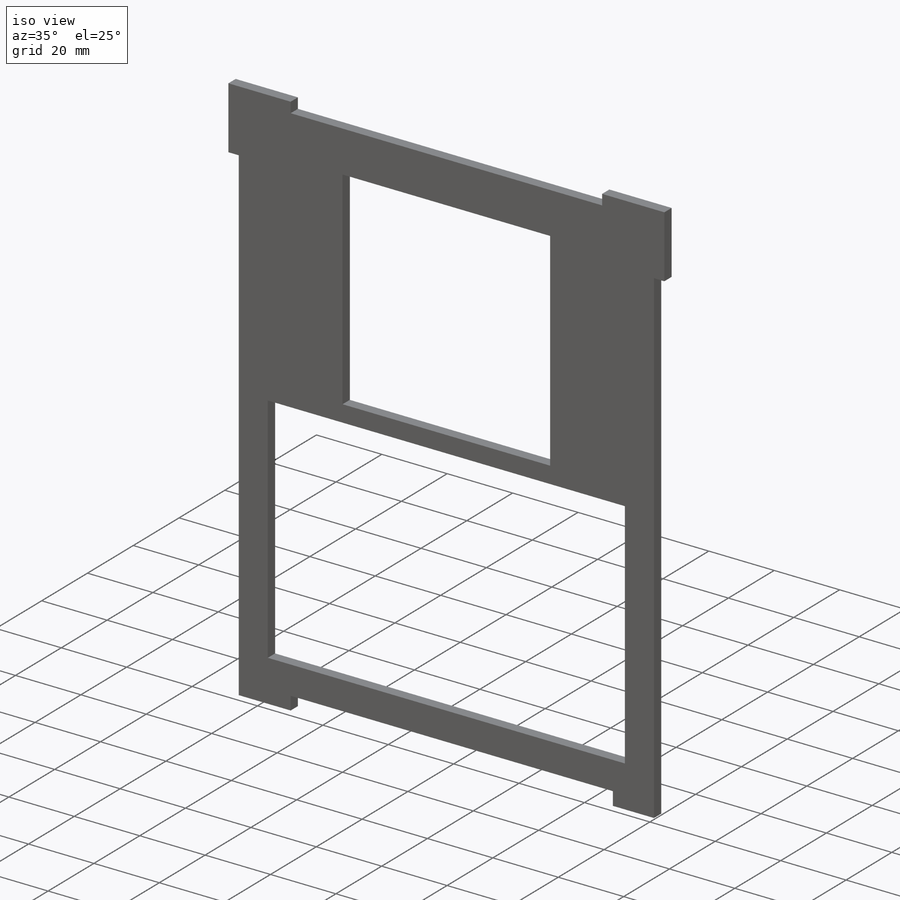
[diagram: iso view]
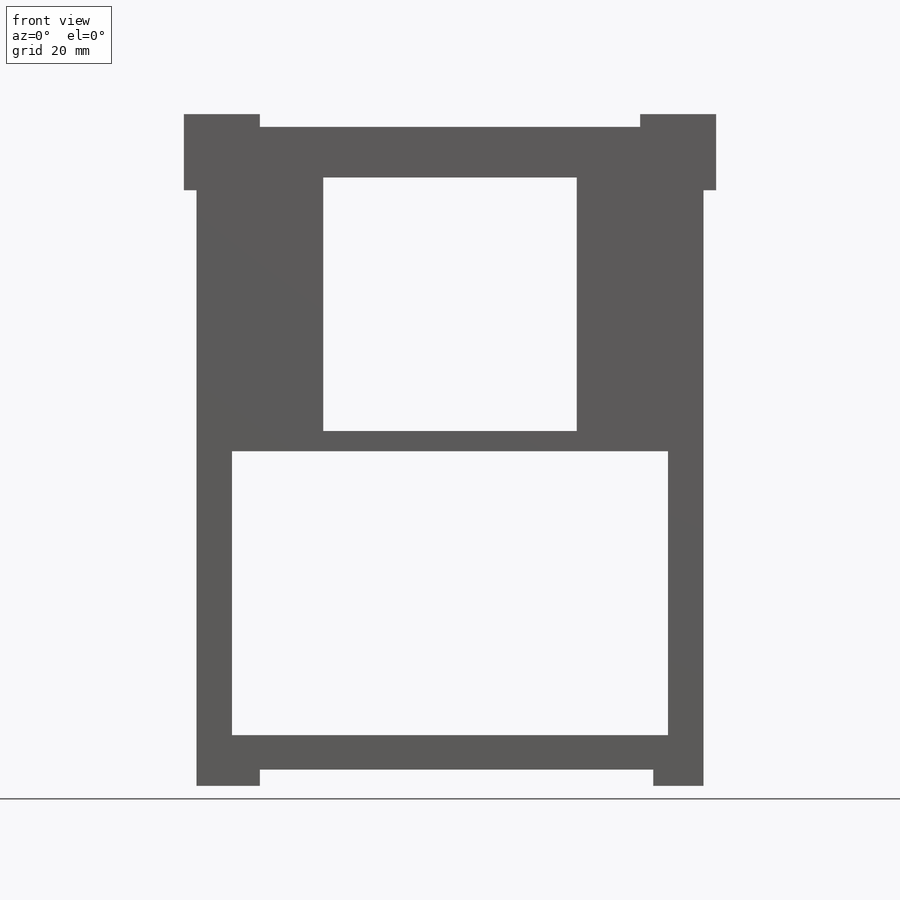
[diagram: front view]
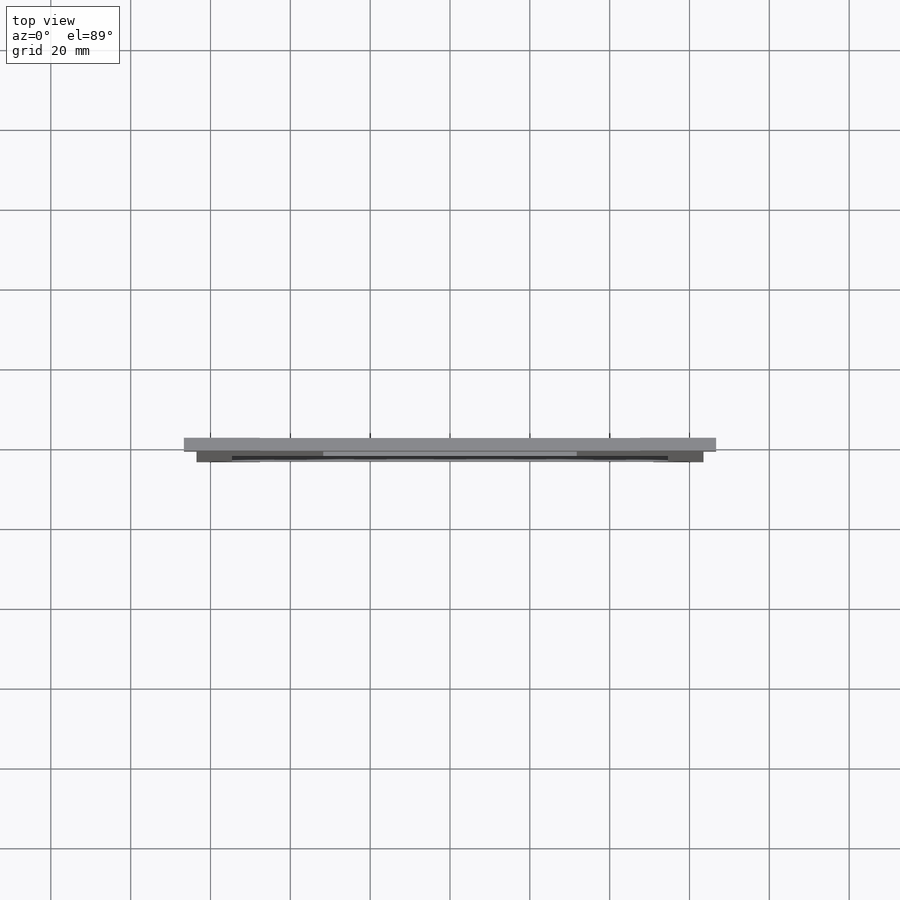
[diagram: top view]
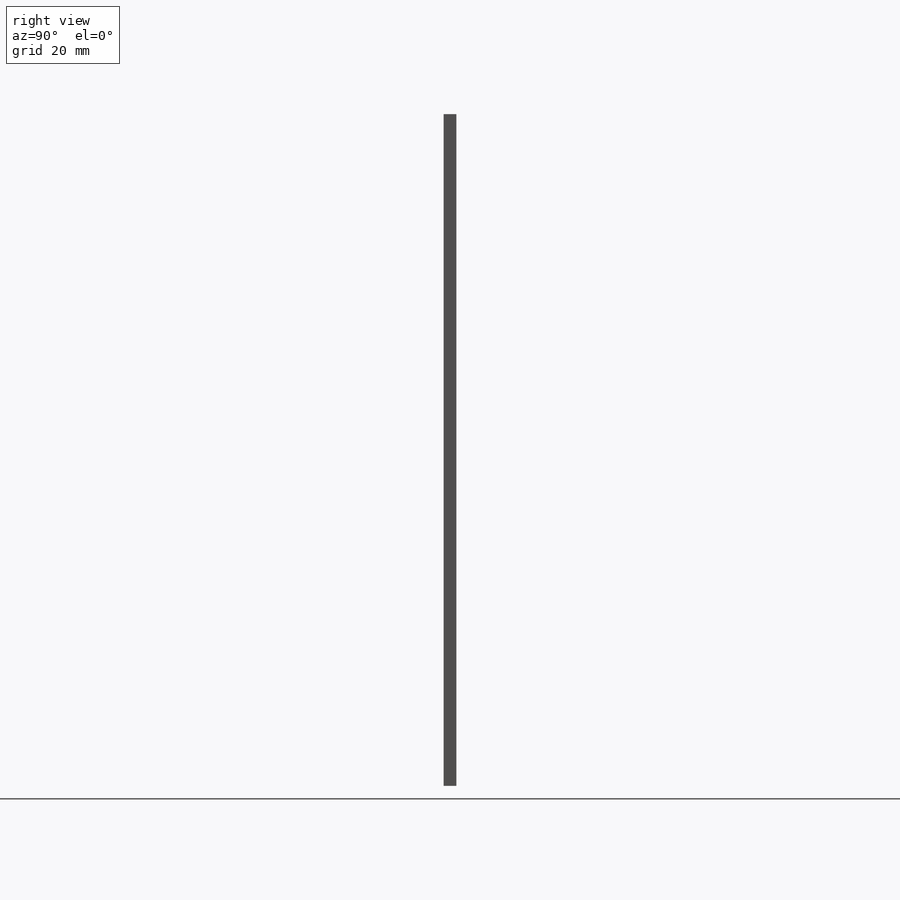
[diagram: right view]
SOLIDWORKS PART (.sldprt)
format: sldprt  version: not decoded by parser v0  size: 298,496 bytes
history: native  units: mm
features: sketch x7, cut_extrude x5, extrude x2, material x1 (+12 scaffold rows collapsed)
feature tree (27):
  scaffold x12  (default folders/planes/origin — collapsed)
  material  "Material <not specified>"
  sketch  "Sketch1"  dims[c1.D1=~100.161905mm c1.D2=~67.630688mm c2.D1=177.8mm c2.D2=127.0mm]
  extrude  "Boss-Extrude1"  Depth=3.175mm
  sketch  "Sketch3"  dims[c1.D1=~62.06122mm c1.D2=~65.741176mm c2.D1=63.5mm c2.D2=63.5mm c2.D3=~54.811983mm c2.D4=~92.524619mm c3.D3=71.12mm c3.D4=109.22mm c3.D5=25.4mm c3.D6=12.7mm c3.D7=5.08mm]
  cut_extrude  "Cut-Extrude2"  [1 undecoded]
  sketch  "Sketch4"  dims[c1.D1=~7.080715mm c1.D2=~7.236823mm c2.D1=~7.080715mm c2.D2=~6.016488mm c3.D1=6.35mm c3.D2=6.35mm c3.D3=6.35mm c3.D4=6.35mm c3.D5=~12.809999mm c3.D6=6.35mm c4.D5=6.35mm c4.D6=~16.392949mm c5.D5=6.35mm c5.D6=~17.003116mm c6.D5=~15.860835mm c6.D6=6.35mm c7.D5=12.7mm c7.D6=12.7mm c7.D7=12.7mm c7.D8=12.7mm]
  extrude  "Boss-Extrude2"  Depth=3.175mm
  sketch  "Sketch5"  dims[c1.D1=~7.791947mm c1.D2=~8.328234mm c2.D1=~12.019642mm c2.D2=~15.300216mm c3.D1=19.05mm c3.D2=19.05mm c3.D3=12.7mm c3.D4=12.7mm]
  cut_extrude  "Cut-Extrude3"  [1 undecoded]
  sketch  "Sketch6"  dims[c1.D1=12.7mm c1.D2=~3.361765mm c2.D1=3.302mm]
  cut_extrude  "Cut-Extrude4"  [1 undecoded]
  sketch  "Sketch7"  dims[c1.D1=85.598mm c1.D2=~7.582781mm c2.D1=4.064mm c2.D2=12.7mm]
  cut_extrude  "Cut-Extrude5"  [1 undecoded]
  sketch  "Sketch9"  dims[c1.D1=~33.075542mm c1.D2=~37.185686mm c2.D1=4.064mm c2.D2=~6.722586mm c3.D1=6.477mm c3.D2=~13.696343mm]
  cut_extrude  "Cut-Extrude6"  [1 undecoded]
decode coverage: 9 of 14 modeling features carry decoded parameters
note: ~ marks probable driven/reference dimensions
note: 5 parameter values undecoded
summary: no parameter record found for 5 features
note: suppression state not decoded; provenance and decode notes live in map.json
